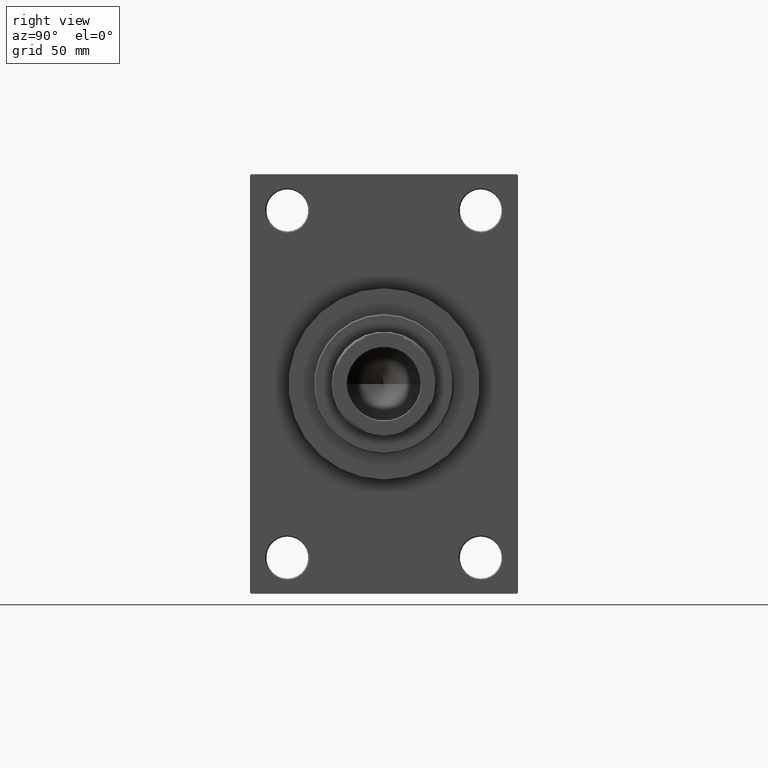
[diagram: clean part render]
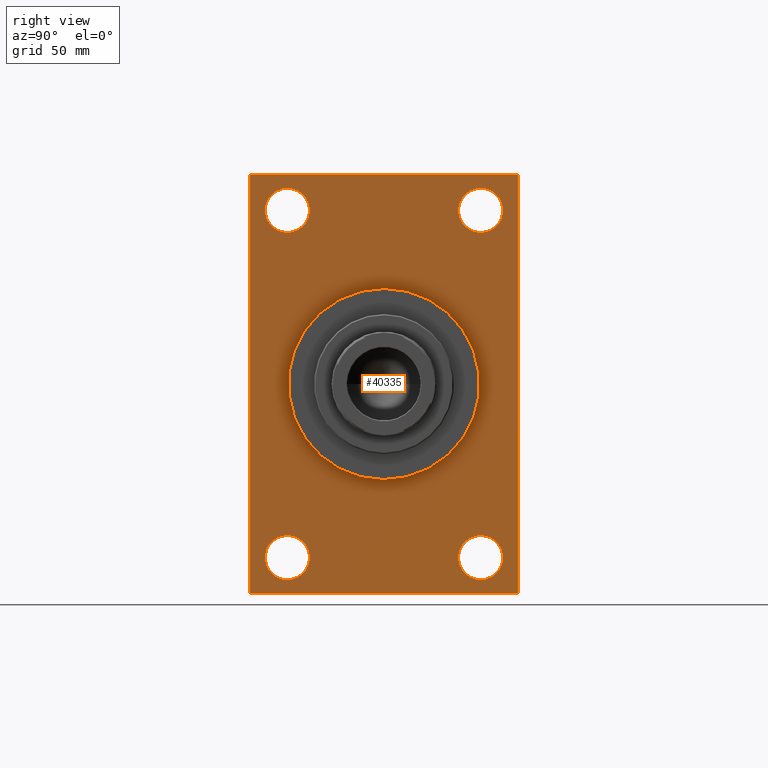
[diagram: same view with one face highlighted and labeled with its STEP entity id]
A machine part, right view. The second image highlights one B-rep face of the part: STEP entity #40335.
In plain terms, the highlighted planar face has unit normal (-1, 0, 0).
Its self-contained STEP definition (entity closure, byte-faithful):
#40 = CARTESIAN_POINT ( 'NONE',  ( 159.0000000000000000, 0.000000000000000000, 0.000000000000000000 ) ) ;
#158 = EDGE_CURVE ( 'NONE', #8981, #36247, #20575, .T. ) ;
#267 = CARTESIAN_POINT ( 'NONE',  ( 159.0000000000000000, 57.50000000000000000, 90.00000000000000000 ) ) ;
#322 = DIRECTION ( 'NONE',  ( -1.000000000000000000, -0.000000000000000000, -0.000000000000000000 ) ) ;
#345 = ORIENTED_EDGE ( 'NONE', *, *, #38366, .T. ) ;
#909 = FACE_BOUND ( 'NONE', #25821, .T. ) ;
#1292 = DIRECTION ( 'NONE',  ( -0.000000000000000000, 0.7071067811865474617, 0.7071067811865474617 ) ) ;
#1543 = AXIS2_PLACEMENT_3D ( 'NONE', #16640, #39555, #6545 ) ;
#1613 = CARTESIAN_POINT ( 'NONE',  ( 159.0000000000000000, -41.50000000000000711, -83.99999999999998579 ) ) ;
#1773 = DIRECTION ( 'NONE',  ( 0.000000000000000000, 0.000000000000000000, 1.000000000000000000 ) ) ;
#2963 = EDGE_CURVE ( 'NONE', #12997, #5364, #24761, .T. ) ;
#3318 = DIRECTION ( 'NONE',  ( -0.000000000000000000, -0.7071067811865474617, -0.7071067811865474617 ) ) ;
#3578 = DIRECTION ( 'NONE',  ( 0.000000000000000000, 0.000000000000000000, -1.000000000000000000 ) ) ;
#4702 = CARTESIAN_POINT ( 'NONE',  ( 159.0000000000000000, -41.50000000000000711, 74.50000000000001421 ) ) ;
#4987 = FACE_BOUND ( 'NONE', #39101, .T. ) ;
#5364 = VERTEX_POINT ( 'NONE', #23699 ) ;
#5900 = EDGE_CURVE ( 'NONE', #24800, #36342, #40004, .T. ) ;
#5984 = DIRECTION ( 'NONE',  ( 0.000000000000000000, 0.000000000000000000, 1.000000000000000000 ) ) ;
#6002 = CARTESIAN_POINT ( 'NONE',  ( 159.0000000000000000, 41.49999999999999289, 84.00000000000001421 ) ) ;
#6206 = DIRECTION ( 'NONE',  ( 1.000000000000000000, 0.000000000000000000, 0.000000000000000000 ) ) ;
#6545 = DIRECTION ( 'NONE',  ( 0.000000000000000000, 0.000000000000000000, 1.000000000000000000 ) ) ;
#7084 = LINE ( 'NONE', #41042, #23976 ) ;
#7637 = VERTEX_POINT ( 'NONE', #27510 ) ;
#7771 = CARTESIAN_POINT ( 'NONE',  ( 159.0000000000000000, -41.50000000000000711, -74.49999999999998579 ) ) ;
#7953 = VERTEX_POINT ( 'NONE', #41702 ) ;
#7954 = LINE ( 'NONE', #267, #18353 ) ;
#8458 = EDGE_CURVE ( 'NONE', #16607, #27172, #23944, .T. ) ;
#8547 = DIRECTION ( 'NONE',  ( 0.000000000000000000, 0.000000000000000000, 1.000000000000000000 ) ) ;
#8712 = EDGE_CURVE ( 'NONE', #7953, #21959, #11651, .T. ) ;
#8981 = VERTEX_POINT ( 'NONE', #35052 ) ;
#9593 = ORIENTED_EDGE ( 'NONE', *, *, #158, .F. ) ;
#9820 = EDGE_CURVE ( 'NONE', #18512, #14655, #7084, .T. ) ;
#10444 = CIRCLE ( 'NONE', #11239, 9.500000000000008882 ) ;
#10479 = EDGE_CURVE ( 'NONE', #36247, #8981, #36320, .T. ) ;
#10720 = EDGE_LOOP ( 'NONE', ( #345, #10833 ) ) ;
#10833 = ORIENTED_EDGE ( 'NONE', *, *, #5900, .T. ) ;
#11239 = AXIS2_PLACEMENT_3D ( 'NONE', #24273, #31289, #5984 ) ;
#11651 = CIRCLE ( 'NONE', #46307, 9.500000000000008882 ) ;
#11908 = CARTESIAN_POINT ( 'NONE',  ( 159.0000000000000000, -41.50000000000000711, 74.50000000000001421 ) ) ;
#12161 = ORIENTED_EDGE ( 'NONE', *, *, #8712, .T. ) ;
#12373 = DIRECTION ( 'NONE',  ( 0.000000000000000000, 0.000000000000000000, 1.000000000000000000 ) ) ;
#12603 = VERTEX_POINT ( 'NONE', #19333 ) ;
#12626 = EDGE_CURVE ( 'NONE', #46087, #20478, #45150, .T. ) ;
#12756 = CARTESIAN_POINT ( 'NONE',  ( 159.0000000000000000, 41.49999999999999289, -83.99999999999998579 ) ) ;
#12997 = VERTEX_POINT ( 'NONE', #34476 ) ;
#13340 = CARTESIAN_POINT ( 'NONE',  ( 159.0000000000000000, 57.50000000000000000, -89.49999999999988631 ) ) ;
#14655 = VERTEX_POINT ( 'NONE', #31424 ) ;
#14761 = EDGE_LOOP ( 'NONE', ( #39386, #39396, #28178, #46157, #18275, #27942, #37102, #32497 ) ) ;
#15433 = CARTESIAN_POINT ( 'NONE',  ( 159.0000000000000000, 56.99999999999997158, 90.00000000000000000 ) ) ;
#15791 = DIRECTION ( 'NONE',  ( -0.000000000000000000, 0.000000000000000000, 1.000000000000000000 ) ) ;
#16134 = DIRECTION ( 'NONE',  ( 0.000000000000000000, -0.7071067811865474617, 0.7071067811865474617 ) ) ;
#16607 = VERTEX_POINT ( 'NONE', #46813 ) ;
#16640 = CARTESIAN_POINT ( 'NONE',  ( 159.0000000000000000, 41.49999999999999289, 74.50000000000001421 ) ) ;
#16814 = DIRECTION ( 'NONE',  ( 0.000000000000000000, -1.000000000000000000, 0.000000000000000000 ) ) ;
#16900 = CARTESIAN_POINT ( 'NONE',  ( 159.0000000000000000, 0.000000000000000000, 41.00000000000000000 ) ) ;
#17952 = CARTESIAN_POINT ( 'NONE',  ( 159.0000000000000000, 41.49999999999999289, -74.49999999999998579 ) ) ;
#18275 = ORIENTED_EDGE ( 'NONE', *, *, #34682, .F. ) ;
#18283 = EDGE_CURVE ( 'NONE', #5364, #12603, #37036, .T. ) ;
#18322 = DIRECTION ( 'NONE',  ( 1.000000000000000000, 0.000000000000000000, 0.000000000000000000 ) ) ;
#18353 = VECTOR ( 'NONE', #37581, 1000.000000000000000 ) ;
#18512 = VERTEX_POINT ( 'NONE', #43500 ) ;
#18946 = FACE_BOUND ( 'NONE', #10720, .T. ) ;
#19106 = DIRECTION ( 'NONE',  ( -1.000000000000000000, -0.000000000000000000, -0.000000000000000000 ) ) ;
#19333 = CARTESIAN_POINT ( 'NONE',  ( 159.0000000000000000, -57.50000000000000000, 89.49999999999994316 ) ) ;
#19427 = CARTESIAN_POINT ( 'NONE',  ( 159.0000000000000000, 41.49999999999999289, -74.49999999999998579 ) ) ;
#20291 = VECTOR ( 'NONE', #3318, 1000.000000000000114 ) ;
#20478 = VERTEX_POINT ( 'NONE', #13340 ) ;
#20575 = CIRCLE ( 'NONE', #29858, 41.00000000000000000 ) ;
#21459 = CIRCLE ( 'NONE', #43771, 9.500000000000008882 ) ;
#21564 = CIRCLE ( 'NONE', #41562, 9.500000000000008882 ) ;
#21621 = CARTESIAN_POINT ( 'NONE',  ( 159.0000000000000000, 57.50000000000000000, 90.00000000000000000 ) ) ;
#21657 = AXIS2_PLACEMENT_3D ( 'NONE', #19427, #30535, #27138 ) ;
#21959 = VERTEX_POINT ( 'NONE', #46726 ) ;
#22083 = CARTESIAN_POINT ( 'NONE',  ( 159.0000000000000000, -57.50000000000000000, 89.49999999999994316 ) ) ;
#22217 = VECTOR ( 'NONE', #16814, 1000.000000000000000 ) ;
#22431 = CARTESIAN_POINT ( 'NONE',  ( 159.0000000000000000, 41.49999999999999289, 65.00000000000000000 ) ) ;
#22598 = EDGE_CURVE ( 'NONE', #34954, #25519, #10444, .T. ) ;
#22763 = DIRECTION ( 'NONE',  ( -1.000000000000000000, -0.000000000000000000, -0.000000000000000000 ) ) ;
#23283 = DIRECTION ( 'NONE',  ( -1.000000000000000000, 0.000000000000000000, -0.000000000000000000 ) ) ;
#23699 = CARTESIAN_POINT ( 'NONE',  ( 159.0000000000000000, -56.99999999999994316, 90.00000000000000000 ) ) ;
#23944 = CIRCLE ( 'NONE', #21657, 9.500000000000008882 ) ;
#23976 = VECTOR ( 'NONE', #26091, 1000.000000000000114 ) ;
#24252 = DIRECTION ( 'NONE',  ( 0.000000000000000000, 0.000000000000000000, -1.000000000000000000 ) ) ;
#24273 = CARTESIAN_POINT ( 'NONE',  ( 159.0000000000000000, -41.50000000000000711, -74.49999999999998579 ) ) ;
#24677 = ORIENTED_EDGE ( 'NONE', *, *, #27477, .T. ) ;
#24761 = LINE ( 'NONE', #21621, #39177 ) ;
#24800 = VERTEX_POINT ( 'NONE', #6002 ) ;
#25025 = CARTESIAN_POINT ( 'NONE',  ( 159.0000000000000000, -41.50000000000000711, -64.99999999999997158 ) ) ;
#25189 = DIRECTION ( 'NONE',  ( -1.000000000000000000, -0.000000000000000000, -0.000000000000000000 ) ) ;
#25244 = LINE ( 'NONE', #35403, #22217 ) ;
#25519 = VERTEX_POINT ( 'NONE', #25025 ) ;
#25821 = EDGE_LOOP ( 'NONE', ( #29160, #34478 ) ) ;
#26091 = DIRECTION ( 'NONE',  ( 0.000000000000000000, 0.7071067811865474617, -0.7071067811865474617 ) ) ;
#26198 = LINE ( 'NONE', #40434, #32912 ) ;
#26896 = CARTESIAN_POINT ( 'NONE',  ( 159.0000000000000000, 0.000000000000000000, 0.000000000000000000 ) ) ;
#27131 = PLANE ( 'NONE',  #46947 ) ;
#27138 = DIRECTION ( 'NONE',  ( 0.000000000000000000, 0.000000000000000000, 1.000000000000000000 ) ) ;
#27172 = VERTEX_POINT ( 'NONE', #12756 ) ;
#27477 = EDGE_CURVE ( 'NONE', #21959, #7953, #41227, .T. ) ;
#27510 = CARTESIAN_POINT ( 'NONE',  ( 159.0000000000000000, 57.50000000000000000, 89.49999999999997158 ) ) ;
#27942 = ORIENTED_EDGE ( 'NONE', *, *, #45081, .T. ) ;
#28178 = ORIENTED_EDGE ( 'NONE', *, *, #34809, .F. ) ;
#28626 = DIRECTION ( 'NONE',  ( 0.000000000000000000, -1.000000000000000000, 0.000000000000000000 ) ) ;
#28842 = EDGE_LOOP ( 'NONE', ( #30035, #45078 ) ) ;
#29160 = ORIENTED_EDGE ( 'NONE', *, *, #35182, .T. ) ;
#29858 = AXIS2_PLACEMENT_3D ( 'NONE', #40, #18322, #32820 ) ;
#30035 = ORIENTED_EDGE ( 'NONE', *, *, #22598, .T. ) ;
#30294 = FACE_OUTER_BOUND ( 'NONE', #14761, .T. ) ;
#30535 = DIRECTION ( 'NONE',  ( -1.000000000000000000, -0.000000000000000000, -0.000000000000000000 ) ) ;
#31214 = AXIS2_PLACEMENT_3D ( 'NONE', #11908, #34090, #12373 ) ;
#31289 = DIRECTION ( 'NONE',  ( -1.000000000000000000, -0.000000000000000000, -0.000000000000000000 ) ) ;
#31424 = CARTESIAN_POINT ( 'NONE',  ( 159.0000000000000000, -56.99999999999997158, -90.00000000000000000 ) ) ;
#31655 = EDGE_LOOP ( 'NONE', ( #24677, #12161 ) ) ;
#31968 = EDGE_CURVE ( 'NONE', #12603, #18512, #26198, .T. ) ;
#32497 = ORIENTED_EDGE ( 'NONE', *, *, #18283, .T. ) ;
#32688 = DIRECTION ( 'NONE',  ( 0.000000000000000000, 0.000000000000000000, 1.000000000000000000 ) ) ;
#32820 = DIRECTION ( 'NONE',  ( 0.000000000000000000, 0.000000000000000000, -1.000000000000000000 ) ) ;
#32912 = VECTOR ( 'NONE', #3578, 1000.000000000000000 ) ;
#33032 = CARTESIAN_POINT ( 'NONE',  ( 159.0000000000000000, 56.99999999999994316, -90.00000000000000000 ) ) ;
#33911 = FACE_BOUND ( 'NONE', #31655, .T. ) ;
#34090 = DIRECTION ( 'NONE',  ( -1.000000000000000000, -0.000000000000000000, -0.000000000000000000 ) ) ;
#34476 = CARTESIAN_POINT ( 'NONE',  ( 159.0000000000000000, 56.99999999999997158, 90.00000000000000000 ) ) ;
#34478 = ORIENTED_EDGE ( 'NONE', *, *, #8458, .T. ) ;
#34532 = CARTESIAN_POINT ( 'NONE',  ( 159.0000000000000000, 57.50000000000000000, -89.49999999999994316 ) ) ;
#34682 = EDGE_CURVE ( 'NONE', #7637, #20478, #7954, .T. ) ;
#34809 = EDGE_CURVE ( 'NONE', #46087, #14655, #25244, .T. ) ;
#34954 = VERTEX_POINT ( 'NONE', #1613 ) ;
#35052 = CARTESIAN_POINT ( 'NONE',  ( 159.0000000000000000, 5.021051876504148963E-15, -41.00000000000000000 ) ) ;
#35182 = EDGE_CURVE ( 'NONE', #27172, #16607, #21459, .T. ) ;
#35403 = CARTESIAN_POINT ( 'NONE',  ( 159.0000000000000000, 57.50000000000000000, -90.00000000000000000 ) ) ;
#36247 = VERTEX_POINT ( 'NONE', #16900 ) ;
#36289 = VECTOR ( 'NONE', #1292, 1000.000000000000114 ) ;
#36320 = CIRCLE ( 'NONE', #38652, 41.00000000000000000 ) ;
#36342 = VERTEX_POINT ( 'NONE', #22431 ) ;
#37036 = LINE ( 'NONE', #22083, #20291 ) ;
#37102 = ORIENTED_EDGE ( 'NONE', *, *, #2963, .T. ) ;
#37295 = FACE_BOUND ( 'NONE', #28842, .T. ) ;
#37581 = DIRECTION ( 'NONE',  ( 0.000000000000000000, 0.000000000000000000, -1.000000000000000000 ) ) ;
#37865 = CIRCLE ( 'NONE', #41692, 9.500000000000008882 ) ;
#38366 = EDGE_CURVE ( 'NONE', #36342, #24800, #21564, .T. ) ;
#38652 = AXIS2_PLACEMENT_3D ( 'NONE', #46465, #6206, #24252 ) ;
#39101 = EDGE_LOOP ( 'NONE', ( #39637, #9593 ) ) ;
#39177 = VECTOR ( 'NONE', #28626, 1000.000000000000000 ) ;
#39386 = ORIENTED_EDGE ( 'NONE', *, *, #31968, .T. ) ;
#39396 = ORIENTED_EDGE ( 'NONE', *, *, #9820, .T. ) ;
#39555 = DIRECTION ( 'NONE',  ( -1.000000000000000000, -0.000000000000000000, -0.000000000000000000 ) ) ;
#39637 = ORIENTED_EDGE ( 'NONE', *, *, #10479, .F. ) ;
#40004 = CIRCLE ( 'NONE', #1543, 9.500000000000008882 ) ;
#40335 = ADVANCED_FACE ( 'NONE', ( #33911, #37295, #909, #18946, #4987, #30294 ), #27131, .F. ) ;
#40434 = CARTESIAN_POINT ( 'NONE',  ( 159.0000000000000000, -57.50000000000000000, 90.00000000000000000 ) ) ;
#41016 = LINE ( 'NONE', #15433, #44766 ) ;
#41042 = CARTESIAN_POINT ( 'NONE',  ( 159.0000000000000000, -56.99999999999997158, -90.00000000000000000 ) ) ;
#41227 = CIRCLE ( 'NONE', #31214, 9.500000000000008882 ) ;
#41562 = AXIS2_PLACEMENT_3D ( 'NONE', #45159, #19106, #1773 ) ;
#41692 = AXIS2_PLACEMENT_3D ( 'NONE', #7771, #322, #47560 ) ;
#41702 = CARTESIAN_POINT ( 'NONE',  ( 159.0000000000000000, -41.50000000000000711, 84.00000000000001421 ) ) ;
#43500 = CARTESIAN_POINT ( 'NONE',  ( 159.0000000000000000, -57.50000000000000000, -89.49999999999991473 ) ) ;
#43771 = AXIS2_PLACEMENT_3D ( 'NONE', #17952, #25189, #32688 ) ;
#44766 = VECTOR ( 'NONE', #16134, 1000.000000000000114 ) ;
#45078 = ORIENTED_EDGE ( 'NONE', *, *, #45772, .T. ) ;
#45081 = EDGE_CURVE ( 'NONE', #7637, #12997, #41016, .T. ) ;
#45150 = LINE ( 'NONE', #34532, #36289 ) ;
#45159 = CARTESIAN_POINT ( 'NONE',  ( 159.0000000000000000, 41.49999999999999289, 74.50000000000001421 ) ) ;
#45772 = EDGE_CURVE ( 'NONE', #25519, #34954, #37865, .T. ) ;
#46087 = VERTEX_POINT ( 'NONE', #33032 ) ;
#46157 = ORIENTED_EDGE ( 'NONE', *, *, #12626, .T. ) ;
#46307 = AXIS2_PLACEMENT_3D ( 'NONE', #4702, #22763, #8547 ) ;
#46465 = CARTESIAN_POINT ( 'NONE',  ( 159.0000000000000000, 0.000000000000000000, 0.000000000000000000 ) ) ;
#46726 = CARTESIAN_POINT ( 'NONE',  ( 159.0000000000000000, -41.50000000000000711, 65.00000000000000000 ) ) ;
#46813 = CARTESIAN_POINT ( 'NONE',  ( 159.0000000000000000, 41.49999999999999289, -64.99999999999997158 ) ) ;
#46947 = AXIS2_PLACEMENT_3D ( 'NONE', #26896, #23283, #15791 ) ;
#47560 = DIRECTION ( 'NONE',  ( 0.000000000000000000, 0.000000000000000000, 1.000000000000000000 ) ) ;